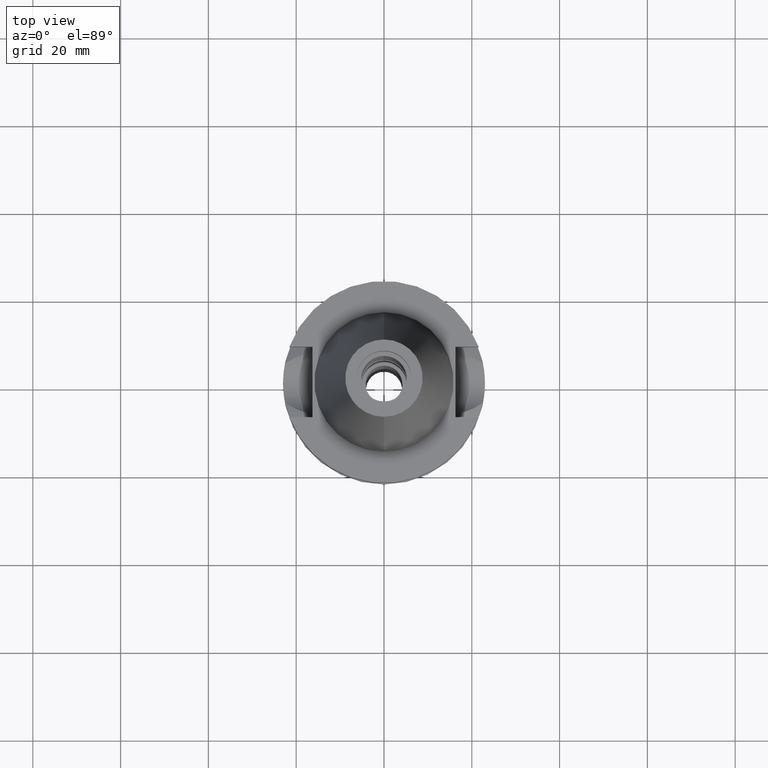
[diagram: clean part render]
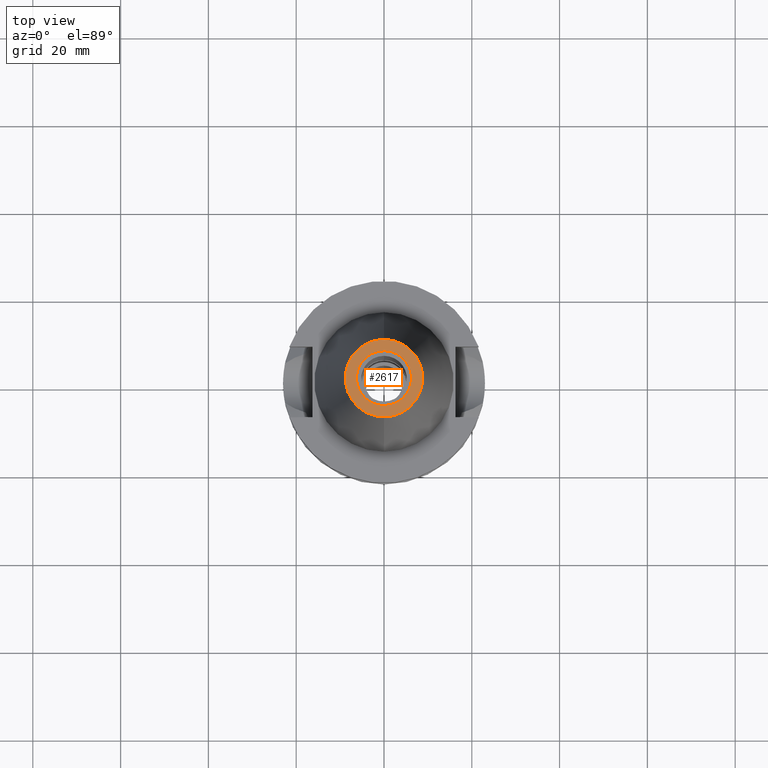
[diagram: same view with one face highlighted and labeled with its STEP entity id]
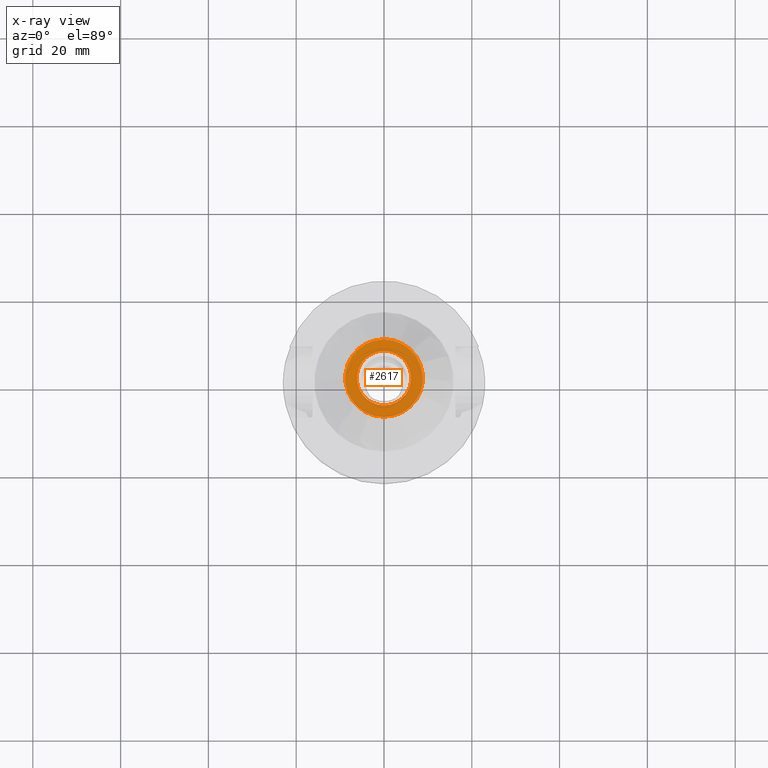
[diagram: x-ray of the same camera — body ghosted, the highlighted face saturated]
A machine part, top view. The second image highlights one B-rep face of the part: STEP entity #2617.
The next image is the same camera in x-ray: the body ghosted, the highlighted face saturated — about 0% of this face is hidden behind the body in this view.
In plain terms, the highlighted planar face has unit normal (0, 0, -1).
Its self-contained STEP definition (entity closure, byte-faithful):
#42 = DIRECTION ( 'NONE',  ( 0.0000000000000000000, 1.000000000000000000, 0.0000000000000000000 ) ) ;
#52 = ORIENTED_EDGE ( 'NONE', *, *, #1233, .F. ) ;
#213 = VERTEX_POINT ( 'NONE', #405 ) ;
#356 = DIRECTION ( 'NONE',  ( 0.0000000000000000000, -1.000000000000000000, 0.0000000000000000000 ) ) ;
#405 = CARTESIAN_POINT ( 'NONE',  ( 0.0000000000000000000, 8.816791732783000768, 48.39999999999999858 ) ) ;
#482 = EDGE_CURVE ( 'NONE', #1121, #1175, #1734, .T. ) ;
#502 = AXIS2_PLACEMENT_3D ( 'NONE', #1194, #2805, #356 ) ;
#605 = DIRECTION ( 'NONE',  ( 0.0000000000000000000, 0.0000000000000000000, 1.000000000000000000 ) ) ;
#634 = CARTESIAN_POINT ( 'NONE',  ( 0.0000000000000000000, -8.816791732783000768, 48.39999999999999858 ) ) ;
#682 = EDGE_LOOP ( 'NONE', ( #52, #1811 ) ) ;
#848 = EDGE_LOOP ( 'NONE', ( #2125, #918 ) ) ;
#918 = ORIENTED_EDGE ( 'NONE', *, *, #482, .F. ) ;
#981 = CARTESIAN_POINT ( 'NONE',  ( 0.0000000000000000000, -6.250000000000000000, 48.39999999999999858 ) ) ;
#1114 = AXIS2_PLACEMENT_3D ( 'NONE', #1295, #1999, #2744 ) ;
#1121 = VERTEX_POINT ( 'NONE', #981 ) ;
#1175 = VERTEX_POINT ( 'NONE', #1834 ) ;
#1178 = DIRECTION ( 'NONE',  ( 0.0000000000000000000, 0.0000000000000000000, 1.000000000000000000 ) ) ;
#1194 = CARTESIAN_POINT ( 'NONE',  ( 0.0000000000000000000, 1.521011324540999938E-14, 48.39999999999999858 ) ) ;
#1233 = EDGE_CURVE ( 'NONE', #213, #2734, #2522, .T. ) ;
#1258 = CARTESIAN_POINT ( 'NONE',  ( 0.0000000000000000000, 1.817375849934999910E-14, 48.39999999999999858 ) ) ;
#1272 = FACE_BOUND ( 'NONE', #848, .T. ) ;
#1295 = CARTESIAN_POINT ( 'NONE',  ( 0.0000000000000000000, 1.521011324540999938E-14, 48.39999999999999858 ) ) ;
#1358 = CIRCLE ( 'NONE', #502, 8.816791732783000768 ) ;
#1404 = AXIS2_PLACEMENT_3D ( 'NONE', #2345, #1178, #42 ) ;
#1464 = PLANE ( 'NONE',  #2379 ) ;
#1503 = DIRECTION ( 'NONE',  ( 0.0000000000000000000, -1.000000000000000000, 0.0000000000000000000 ) ) ;
#1600 = EDGE_CURVE ( 'NONE', #2734, #213, #1358, .T. ) ;
#1734 = CIRCLE ( 'NONE', #2754, 6.250000000000000000 ) ;
#1811 = ORIENTED_EDGE ( 'NONE', *, *, #1600, .F. ) ;
#1834 = CARTESIAN_POINT ( 'NONE',  ( 0.0000000000000000000, 6.250000000000000000, 48.39999999999999858 ) ) ;
#1999 = DIRECTION ( 'NONE',  ( 0.0000000000000000000, 0.0000000000000000000, -1.000000000000000000 ) ) ;
#2125 = ORIENTED_EDGE ( 'NONE', *, *, #2454, .F. ) ;
#2170 = DIRECTION ( 'NONE',  ( 0.0000000000000000000, 0.0000000000000000000, -1.000000000000000000 ) ) ;
#2186 = DIRECTION ( 'NONE',  ( 0.0000000000000000000, -1.000000000000000000, 0.0000000000000000000 ) ) ;
#2345 = CARTESIAN_POINT ( 'NONE',  ( 0.0000000000000000000, 1.908489571790999955E-14, 48.39999999999999858 ) ) ;
#2379 = AXIS2_PLACEMENT_3D ( 'NONE', #1258, #2170, #2186 ) ;
#2454 = EDGE_CURVE ( 'NONE', #1175, #1121, #2579, .T. ) ;
#2522 = CIRCLE ( 'NONE', #1114, 8.816791732783000768 ) ;
#2579 = CIRCLE ( 'NONE', #1404, 6.250000000000000000 ) ;
#2615 = FACE_OUTER_BOUND ( 'NONE', #682, .T. ) ;
#2617 = ADVANCED_FACE ( 'NONE', ( #2615, #1272 ), #1464, .F. ) ;
#2652 = CARTESIAN_POINT ( 'NONE',  ( 0.0000000000000000000, 1.908489571790999955E-14, 48.39999999999999858 ) ) ;
#2734 = VERTEX_POINT ( 'NONE', #634 ) ;
#2744 = DIRECTION ( 'NONE',  ( 0.0000000000000000000, 1.000000000000000000, 0.0000000000000000000 ) ) ;
#2754 = AXIS2_PLACEMENT_3D ( 'NONE', #2652, #605, #1503 ) ;
#2805 = DIRECTION ( 'NONE',  ( 0.0000000000000000000, 0.0000000000000000000, -1.000000000000000000 ) ) ;